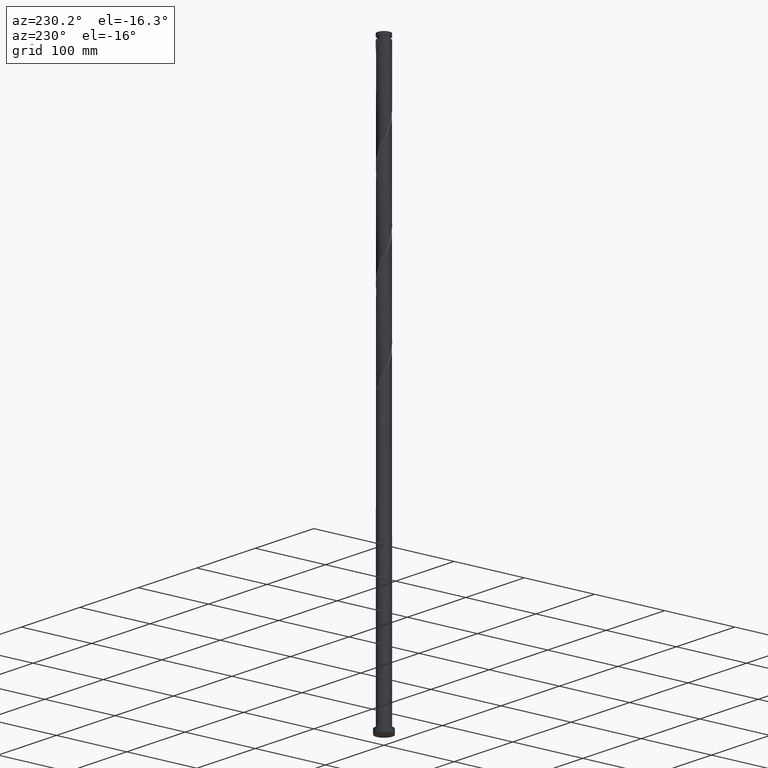
[diagram: clean part render]
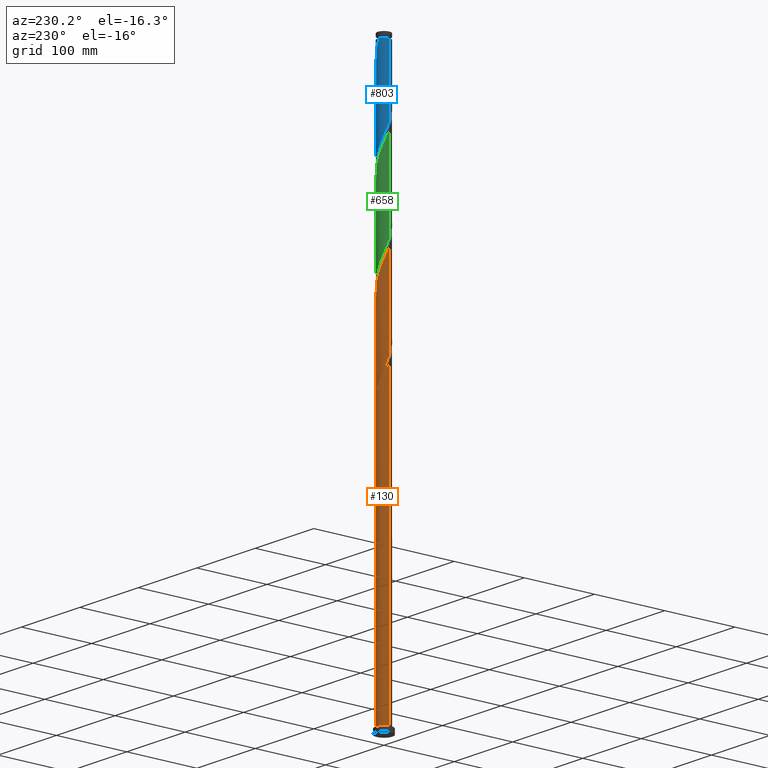
[diagram: same view with three faces highlighted in distinct colors, each labeled with its STEP entity id]
A machine part, auxiliary view with three faces highlighted in distinct colors.
Their STEP definitions:

[orange] entity #130 — the highlighted cylindrical surface (edge-blend (fillet) strip) has radius 9 mm, axis along (-0, -0, -1).
#23 = CARTESIAN_POINT ( 'NONE',  ( -2.521823423607690184, 8.671595382634528448, 527.4047937671250565 ) ) ;
#33 = CARTESIAN_POINT ( 'NONE',  ( 4.671915534983328122, 7.728477540496988318, 509.8609341180023762 ) ) ;
#39 = LINE ( 'NONE', #51, #1264 ) ;
#51 = CARTESIAN_POINT ( 'NONE',  ( -9.000000000000001776, 0.000000000000000000, 800.0000000000000000 ) ) ;
#57 = EDGE_CURVE ( 'NONE', #1976, #60, #691, .T. ) ;
#60 = VERTEX_POINT ( 'NONE', #1732 ) ;
#65 = CARTESIAN_POINT ( 'NONE',  ( -7.357693319166356716, 5.183082964905613821, 416.8784779776514142 ) ) ;
#88 = CARTESIAN_POINT ( 'NONE',  ( -0.4304783433265373938, 9.020579153020694463, 397.5802323636163464 ) ) ;
#130 = ADVANCED_FACE ( 'NONE', ( #1489 ), #633, .T. ) ;
#147 = CARTESIAN_POINT ( 'NONE',  ( -7.316277144428680046, 5.294171191593201264, 408.1065481530898751 ) ) ;
#159 = CARTESIAN_POINT ( 'NONE',  ( -1.790977386791924086, 8.820000000000009166, 392.3170744688795253 ) ) ;
#171 = CARTESIAN_POINT ( 'NONE',  ( -8.796548163028864664, 1.902824325972771291, 550.2118113109847855 ) ) ;
#172 = CARTESIAN_POINT ( 'NONE',  ( -8.087884598390568058, 4.017745958009477647, 411.6153200829147067 ) ) ;
#184 = CARTESIAN_POINT ( 'NONE',  ( 6.404236555330751202, 6.323428986188231349, 504.5977762232654982 ) ) ;
#185 = CARTESIAN_POINT ( 'NONE',  ( -3.218275075876960933, 8.404921506830945077, 395.8258463987040159 ) ) ;
#193 = CARTESIAN_POINT ( 'NONE',  ( -4.557786610309061182, 7.760578664950676497, 532.6679516618619346 ) ) ;
#201 = CARTESIAN_POINT ( 'NONE',  ( 8.433726960243497217, 3.229304788967267914, 495.8258463987040159 ) ) ;
#209 = CARTESIAN_POINT ( 'NONE',  ( 1.169912026461563004, 8.923637478648537069, 518.6328639425636311 ) ) ;
#229 = EDGE_CURVE ( 'NONE', #2228, #60, #39, .T. ) ;
#264 = AXIS2_PLACEMENT_3D ( 'NONE', #390, #1382, #1192 ) ;
#274 = EDGE_CURVE ( 'NONE', #2071, #2228, #1242, .T. ) ;
#287 = CARTESIAN_POINT ( 'NONE',  ( 0.000000000000000000, 0.000000000000000000, 7.000000000000000000 ) ) ;
#336 = ORIENTED_EDGE ( 'NONE', *, *, #1850, .T. ) ;
#345 = CARTESIAN_POINT ( 'NONE',  ( -7.702080871409625829, 4.655958574801339900, 409.8609341180023762 ) ) ;
#358 = CARTESIAN_POINT ( 'NONE',  ( -6.345100722077875233, 6.426185235944550378, 404.5977762232655550 ) ) ;
#370 = CARTESIAN_POINT ( 'NONE',  ( 8.850228015680128735, 1.797115447169553626, 492.3170744688795821 ) ) ;
#380 = CARTESIAN_POINT ( 'NONE',  ( -6.345100722077875233, 6.426185235944550378, 537.9311095565988126 ) ) ;
#388 = CARTESIAN_POINT ( 'NONE',  ( -3.914726728146229462, 8.138247631027358153, 530.9135656969496040 ) ) ;
#390 = CARTESIAN_POINT ( 'NONE',  ( 0.000000000000000000, 0.000000000000000000, 800.0000000000000000 ) ) ;
#408 = CARTESIAN_POINT ( 'NONE',  ( 7.357693319166364709, 5.183082964905619150, 501.0890042934409507 ) ) ;
#443 = CARTESIAN_POINT ( 'NONE',  ( 9.000000000000001776, 1.102182119232617911E-15, 7.000000000000000000 ) ) ;
#476 = AXIS2_PLACEMENT_3D ( 'NONE', #1306, #939, #1629 ) ;
#519 = CARTESIAN_POINT ( 'NONE',  ( -4.557786610309061182, 7.760578664950676497, 399.3346183285286202 ) ) ;
#523 = CARTESIAN_POINT ( 'NONE',  ( 9.000000000000010658, -2.597595984921478145E-15, 488.0651422680906535 ) ) ;
#541 = CARTESIAN_POINT ( 'NONE',  ( -5.200846492471892901, 7.382909698873992177, 401.0890042934408370 ) ) ;
#563 = CARTESIAN_POINT ( 'NONE',  ( -1.060131349976158432, 8.968404617365488107, 523.8960218373003954 ) ) ;
#586 = CARTESIAN_POINT ( 'NONE',  ( 5.276088912864434377, 7.291288348676742359, 508.1065481530901025 ) ) ;
#615 = CARTESIAN_POINT ( 'NONE',  ( -5.276088912864421054, 7.291288348676738806, 409.8609341180022625 ) ) ;
#626 = CARTESIAN_POINT ( 'NONE',  ( -6.404236555330742320, 6.323428986188227796, 413.3697060478268668 ) ) ;
#633 = CYLINDRICAL_SURFACE ( 'NONE', #264, 9.000000000000001776 ) ;
#639 = CARTESIAN_POINT ( 'NONE',  ( 0.3148265033248119904, 8.994491885193086844, 395.8258463987041864 ) ) ;
#651 = CARTESIAN_POINT ( 'NONE',  ( -3.336131102201616905, 8.392043203470045398, 404.5977762232654413 ) ) ;
#684 = AXIS2_PLACEMENT_3D ( 'NONE', #287, #1384, #1967 ) ;
#691 = CIRCLE ( 'NONE', #684, 9.000000000000001776 ) ;
#731 = CARTESIAN_POINT ( 'NONE',  ( 5.880262290745535303, 6.854099156856497288, 506.3521621881778287 ) ) ;
#732 = CARTESIAN_POINT ( 'NONE',  ( -9.000000000000010658, 7.464356278509994737E-16, 421.3984756014240816 ) ) ;
#740 = CARTESIAN_POINT ( 'NONE',  ( -0.3148265033248051625, 8.994491885193095726, 522.1416358723881785 ) ) ;
#755 = CARTESIAN_POINT ( 'NONE',  ( 6.928210819915964436, 5.792758815519961857, 502.8433902583532245 ) ) ;
#770 = DIRECTION ( 'NONE',  ( -0.000000000000000000, -0.000000000000000000, -1.000000000000000000 ) ) ;
#789 = ORIENTED_EDGE ( 'NONE', *, *, #878, .F. ) ;
#795 = CARTESIAN_POINT ( 'NONE',  ( -1.909345709596579121, 8.826695804276356583, 401.0890042934410076 ) ) ;
#864 = CARTESIAN_POINT ( 'NONE',  ( -2.521823423607690184, 8.671595382634528448, 394.0714604337917990 ) ) ;
#878 = EDGE_CURVE ( 'NONE', #1628, #1947, #2201, .T. ) ;
#899 = CARTESIAN_POINT ( 'NONE',  ( -8.989769301839674043, 0.4290080415344310616, 553.7205832408093329 ) ) ;
#901 = CARTESIAN_POINT ( 'NONE',  ( -8.638875644049971214, 2.631727088173295037, 415.1240920127391973 ) ) ;
#912 = CARTESIAN_POINT ( 'NONE',  ( -7.316277144428680046, 5.294171191593201264, 541.4398814864233600 ) ) ;
#920 = CARTESIAN_POINT ( 'NONE',  ( -5.772973607274883179, 6.904547467409275718, 536.1767235916867094 ) ) ;
#927 = CARTESIAN_POINT ( 'NONE',  ( 3.336131102201623122, 8.392043203470052504, 513.3697060478268668 ) ) ;
#939 = DIRECTION ( 'NONE',  ( -6.847750913376832828E-30, -1.541976423090494529E-14, -1.000000000000000000 ) ) ;
#985 = CARTESIAN_POINT ( 'NONE',  ( -8.850228015680121629, 1.797115447169555180, 425.6504078022127260 ) ) ;
#1091 = CARTESIAN_POINT ( 'NONE',  ( 1.909345709596587337, 8.826695804276367241, 516.8784779776513005 ) ) ;
#1101 = VERTEX_POINT ( 'NONE', #523 ) ;
#1102 = CARTESIAN_POINT ( 'NONE',  ( 1.790977386791927639, 8.820000000000002061, 392.3170744688795253 ) ) ;
#1109 = CARTESIAN_POINT ( 'NONE',  ( -9.000000000000010658, 7.464356278509995723E-16, 554.7318089347573959 ) ) ;
#1132 = CARTESIAN_POINT ( 'NONE',  ( -9.000000000000014211, 0.2146260082064675168, 554.2254859163173251 ) ) ;
#1137 = CARTESIAN_POINT ( 'NONE',  ( -1.790977386791924086, 8.820000000000009166, 392.3170744688795253 ) ) ;
#1163 = CARTESIAN_POINT ( 'NONE',  ( -4.671915534983317464, 7.728477540496980325, 408.1065481530899319 ) ) ;
#1164 = CIRCLE ( 'NONE', #476, 9.000000000000001776 ) ;
#1192 = DIRECTION ( 'NONE',  ( -1.000000000000000000, 0.000000000000000000, 0.000000000000000000 ) ) ;
#1200 = CARTESIAN_POINT ( 'NONE',  ( -8.433726960243483006, 3.229304788967272355, 422.1416358723882922 ) ) ;
#1208 = CARTESIAN_POINT ( 'NONE',  ( -8.641977487961801430, 2.513210118068413212, 423.8960218373005659 ) ) ;
#1242 =( BOUNDED_CURVE ( )  B_SPLINE_CURVE ( 2, ( #159, #864, #185, #2171, #519, #541, #1421, #358, #2158, #147, #345, #172, #2147, #901, #1630, #1820, #1641, #1952, #732 ),
 .UNSPECIFIED., .F., .T. ) 
 B_SPLINE_CURVE_WITH_KNOTS ( ( 3, 2, 2, 2, 2, 2, 2, 2, 2, 3 ),
 ( 0.000000000000000000, 0.006578947368421018439, 0.01315789473684214617, 0.01973684210526316374, 0.02631578947368417784, 0.03289473684210530990, 0.03947368421052632748, 0.04605263157894734505, 0.05263157894736847364, 0.05452958095159557428 ),
 .UNSPECIFIED. ) 
 CURVE ( )  GEOMETRIC_REPRESENTATION_ITEM ( )  RATIONAL_B_SPLINE_CURVE ( ( 0.9090909090909511381, 0.9059859027333782011, 0.9090909090909511381, 0.9059859027333782011, 0.9090909090909511381, 0.9059859027333782011, 0.9090909090909511381, 0.9059859027333782011, 0.9090909090909511381, 0.9059859027333782011, 0.9090909090909511381, 0.9059859027333782011, 0.9090909090909511381, 0.9059859027333782011, 0.9090909090909511381, 0.9059859027333782011, 0.9090909090909511381, 0.9081951262308998185, 0.9078162034606223063 ) ) 
 REPRESENTATION_ITEM ( '' )  );
#1264 = VECTOR ( 'NONE', #770, 1000.000000000000000 ) ;
#1275 = CARTESIAN_POINT ( 'NONE',  ( -9.000000000000001776, 0.5300877757809067115, 428.6518128888163801 ) ) ;
#1277 = LINE ( 'NONE', #2227, #1588 ) ;
#1297 = CARTESIAN_POINT ( 'NONE',  ( 8.937772968675862018, 1.056510463936466859, 490.5626885039672516 ) ) ;
#1306 = CARTESIAN_POINT ( 'NONE',  ( 0.000000000000000000, 0.000000000000000000, 392.3170744688796390 ) ) ;
#1364 = CARTESIAN_POINT ( 'NONE',  ( -4.004023318592468961, 8.060260371983511973, 406.3521621881777719 ) ) ;
#1377 = CARTESIAN_POINT ( 'NONE',  ( 1.790977386791927639, 8.820000000000002061, 392.3170744688795253 ) ) ;
#1382 = DIRECTION ( 'NONE',  ( -0.000000000000000000, -0.000000000000000000, -1.000000000000000000 ) ) ;
#1384 = DIRECTION ( 'NONE',  ( 0.000000000000000000, 0.000000000000000000, 1.000000000000000000 ) ) ;
#1421 = CARTESIAN_POINT ( 'NONE',  ( -5.772973607274883179, 6.904547467409275718, 402.8433902583532245 ) ) ;
#1453 = CARTESIAN_POINT ( 'NONE',  ( -9.000000000000005329, 1.283869279903725074E-15, 429.9023400030017115 ) ) ;
#1467 = CARTESIAN_POINT ( 'NONE',  ( -8.363380121220270524, 3.324736523091387230, 546.7030393811602380 ) ) ;
#1475 = CARTESIAN_POINT ( 'NONE',  ( -6.830688933253277639, 5.860178213768877598, 539.6854955215111431 ) ) ;
#1488 = CARTESIAN_POINT ( 'NONE',  ( -8.087884598390568058, 4.017745958009477647, 544.9486534162480211 ) ) ;
#1489 = FACE_OUTER_BOUND ( 'NONE', #2218, .T. ) ;
#1509 = ORIENTED_EDGE ( 'NONE', *, *, #274, .F. ) ;
#1527 = CARTESIAN_POINT ( 'NONE',  ( -6.928210819915955554, 5.792758815519961857, 415.1240920127393110 ) ) ;
#1537 = DIRECTION ( 'NONE',  ( -0.000000000000000000, -0.000000000000000000, -1.000000000000000000 ) ) ;
#1538 = CARTESIAN_POINT ( 'NONE',  ( 1.060131349976162651, 8.968404617365475673, 394.0714604337917422 ) ) ;
#1573 = CARTESIAN_POINT ( 'NONE',  ( -9.000000000000001776, 0.000000000000000000, 800.0000000000000000 ) ) ;
#1574 = CARTESIAN_POINT ( 'NONE',  ( -5.880262290745529974, 6.854099156856491959, 411.6153200829146499 ) ) ;
#1588 = VECTOR ( 'NONE', #2026, 1000.000000000000000 ) ;
#1628 = VERTEX_POINT ( 'NONE', #1786 ) ;
#1629 = DIRECTION ( 'NONE',  ( 0.000000000000000000, 1.000000000000000000, -1.233581138472395876E-14 ) ) ;
#1630 = CARTESIAN_POINT ( 'NONE',  ( -8.796548163028864664, 1.902824325972771291, 416.8784779776514142 ) ) ;
#1640 = CARTESIAN_POINT ( 'NONE',  ( -7.702080871409625829, 4.655958574801339900, 543.1942674513355769 ) ) ;
#1641 = CARTESIAN_POINT ( 'NONE',  ( -8.989769301839674043, 0.4290080415344310616, 420.3872499074760754 ) ) ;
#1651 = CARTESIAN_POINT ( 'NONE',  ( 9.000000000000010658, 0.5300877757809099311, 489.3156693822759848 ) ) ;
#1660 = CARTESIAN_POINT ( 'NONE',  ( 4.004023318592474290, 8.060260371983519079, 511.6153200829146499 ) ) ;
#1670 = CARTESIAN_POINT ( 'NONE',  ( -8.638875644049971214, 2.631727088173295037, 548.4574253460726823 ) ) ;
#1719 = ORIENTED_EDGE ( 'NONE', *, *, #2279, .F. ) ;
#1722 =( BOUNDED_CURVE ( )  B_SPLINE_CURVE ( 2, ( #1837, #1651, #1297, #370, #1847, #201, #2002, #1830, #408, #755, #184, #731, #586, #33, #1660, #927, #2206, #1091, #209, #2016, #740, #563, #2361, #23, #2039, #388, #193, #1819, #920, #380, #1475, #912, #1640, #1488, #1467, #1670, #171, #2194, #899, #1132, #1109 ),
 .UNSPECIFIED., .F., .T. ) 
 B_SPLINE_CURVE_WITH_KNOTS ( ( 3, 2, 2, 2, 2, 2, 2, 2, 2, 2, 2, 2, 2, 2, 2, 2, 2, 2, 2, 2, 3 ),
 ( 0.1795295809515956298, 0.1842105263157894912, 0.1907894736842105088, 0.1973684210526315264, 0.2039473684210526550, 0.2105263157894736725, 0.2171052631578946901, 0.2236842105263158187, 0.2302631578947368363, 0.2368421052631578538, 0.2434210526315789824, 0.2500000000000000000, 0.2565789473684210176, 0.2631578947368421462, 0.2697368421052631637, 0.2763157894736841813, 0.2828947368421053099, 0.2894736842105263275, 0.2960526315789473450, 0.3026315789473684736, 0.3045295809515959351 ),
 .UNSPECIFIED. ) 
 CURVE ( )  GEOMETRIC_REPRESENTATION_ITEM ( )  RATIONAL_B_SPLINE_CURVE ( ( 0.9078162034606223063, 0.9068816855934295207, 0.9090909090909511381, 0.9059859027333782011, 0.9090909090909511381, 0.9059859027333782011, 0.9090909090909511381, 0.9059859027333782011, 0.9090909090909511381, 0.9059859027333782011, 0.9090909090909511381, 0.9059859027333782011, 0.9090909090909511381, 0.9059859027333782011, 0.9090909090909511381, 0.9059859027333782011, 0.9090909090909511381, 0.9059859027333782011, 0.9090909090909511381, 0.9059859027333782011, 0.9090909090909511381, 0.9059859027333782011, 0.9090909090909511381, 0.9059859027333782011, 0.9090909090909511381, 0.9059859027333782011, 0.9090909090909511381, 0.9059859027333782011, 0.9090909090909511381, 0.9059859027333782011, 0.9090909090909511381, 0.9059859027333782011, 0.9090909090909511381, 0.9059859027333782011, 0.9090909090909511381, 0.9059859027333782011, 0.9090909090909511381, 0.9059859027333782011, 0.9090909090909511381, 0.9081951262308995965, 0.9078162034606220843 ) ) 
 REPRESENTATION_ITEM ( '' )  );
#1732 = CARTESIAN_POINT ( 'NONE',  ( -9.000000000000001776, 0.000000000000000000, 7.000000000000000000 ) ) ;
#1739 = CARTESIAN_POINT ( 'NONE',  ( -2.622738405899098346, 8.609369503873201879, 402.8433902583532813 ) ) ;
#1779 = VECTOR ( 'NONE', #1537, 1000.000000000000000 ) ;
#1786 = CARTESIAN_POINT ( 'NONE',  ( -9.000000000000005329, 1.283869279903725074E-15, 429.9023400030017115 ) ) ;
#1803 = VERTEX_POINT ( 'NONE', #2183 ) ;
#1819 = CARTESIAN_POINT ( 'NONE',  ( -5.200846492471892901, 7.382909698873992177, 534.4223376267742651 ) ) ;
#1820 = CARTESIAN_POINT ( 'NONE',  ( -8.954220682007752785, 1.173921563772246657, 418.6328639425637448 ) ) ;
#1830 = CARTESIAN_POINT ( 'NONE',  ( 7.787175818416772977, 4.573407114291268449, 499.3346183285286770 ) ) ;
#1837 = CARTESIAN_POINT ( 'NONE',  ( 9.000000000000010658, -2.597595984921478145E-15, 488.0651422680906535 ) ) ;
#1847 = CARTESIAN_POINT ( 'NONE',  ( 8.641977487961812088, 2.513210118068414545, 494.0714604337918558 ) ) ;
#1850 = EDGE_CURVE ( 'NONE', #1101, #1976, #1277, .T. ) ;
#1871 = ORIENTED_EDGE ( 'NONE', *, *, #229, .F. ) ;
#1873 = ORIENTED_EDGE ( 'NONE', *, *, #1902, .F. ) ;
#1895 = CARTESIAN_POINT ( 'NONE',  ( -1.169912026461558341, 8.923637478648526411, 399.3346183285286770 ) ) ;
#1899 = CARTESIAN_POINT ( 'NONE',  ( -8.937772968675853136, 1.056510463936470856, 427.4047937671251702 ) ) ;
#1902 = EDGE_CURVE ( 'NONE', #1101, #1803, #1722, .T. ) ;
#1904 = ORIENTED_EDGE ( 'NONE', *, *, #1944, .T. ) ;
#1916 = CARTESIAN_POINT ( 'NONE',  ( -7.787175818416761430, 4.573407114291266673, 418.6328639425638016 ) ) ;
#1944 = EDGE_CURVE ( 'NONE', #2071, #1947, #1164, .T. ) ;
#1947 = VERTEX_POINT ( 'NONE', #1102 ) ;
#1952 = CARTESIAN_POINT ( 'NONE',  ( -9.000000000000012434, 0.2146260082065082619, 420.8921525829838970 ) ) ;
#1967 = DIRECTION ( 'NONE',  ( 1.000000000000000000, 0.000000000000000000, 0.000000000000000000 ) ) ;
#1976 = VERTEX_POINT ( 'NONE', #443 ) ;
#2002 = CARTESIAN_POINT ( 'NONE',  ( 8.110451389330131988, 3.901355951629267960, 497.5802323636164033 ) ) ;
#2016 = CARTESIAN_POINT ( 'NONE',  ( 0.4304783433265395587, 9.020579153020705121, 520.3872499074758480 ) ) ;
#2026 = DIRECTION ( 'NONE',  ( -0.000000000000000000, -0.000000000000000000, -1.000000000000000000 ) ) ;
#2039 = CARTESIAN_POINT ( 'NONE',  ( -3.218275075876960933, 8.404921506830945077, 529.1591797320373871 ) ) ;
#2071 = VERTEX_POINT ( 'NONE', #1137 ) ;
#2147 = CARTESIAN_POINT ( 'NONE',  ( -8.363380121220270524, 3.324736523091387230, 413.3697060478269236 ) ) ;
#2158 = CARTESIAN_POINT ( 'NONE',  ( -6.830688933253277639, 5.860178213768877598, 406.3521621881778856 ) ) ;
#2171 = CARTESIAN_POINT ( 'NONE',  ( -3.914726728146229462, 8.138247631027358153, 397.5802323636163464 ) ) ;
#2183 = CARTESIAN_POINT ( 'NONE',  ( -9.000000000000010658, 7.464356278509994737E-16, 554.7318089347573959 ) ) ;
#2194 = CARTESIAN_POINT ( 'NONE',  ( -8.954220682007752785, 1.173921563772246657, 551.9661972758970023 ) ) ;
#2201 =( BOUNDED_CURVE ( )  B_SPLINE_CURVE ( 2, ( #1453, #1275, #1899, #985, #1208, #1200, #2277, #1916, #65, #1527, #626, #1574, #615, #1163, #1364, #651, #1739, #795, #1895, #88, #639, #1538, #1377 ),
 .UNSPECIFIED., .F., .T. ) 
 B_SPLINE_CURVE_WITH_KNOTS ( ( 3, 2, 2, 2, 2, 2, 2, 2, 2, 2, 2, 3 ),
 ( 0.9295295809515955465, 0.9342105263157894912, 0.9407894736842105088, 0.9473684210526315264, 0.9539473684210526550, 0.9605263157894736725, 0.9671052631578946901, 0.9736842105263158187, 0.9802631578947368363, 0.9868421052631578538, 0.9934210526315789824, 1.000000000000000000 ),
 .UNSPECIFIED. ) 
 CURVE ( )  GEOMETRIC_REPRESENTATION_ITEM ( )  RATIONAL_B_SPLINE_CURVE ( ( 0.9078162034606180875, 0.9068816855934254129, 0.9090909090909469192, 0.9059859027333740933, 0.9090909090909469192, 0.9059859027333740933, 0.9090909090909469192, 0.9059859027333740933, 0.9090909090909469192, 0.9059859027333740933, 0.9090909090909469192, 0.9059859027333740933, 0.9090909090909469192, 0.9059859027333740933, 0.9090909090909469192, 0.9059859027333740933, 0.9090909090909469192, 0.9059859027333740933, 0.9090909090909469192, 0.9059859027333740933, 0.9090909090909469192, 0.9059859027333740933, 0.9090909090909469192 ) ) 
 REPRESENTATION_ITEM ( '' )  );
#2206 = CARTESIAN_POINT ( 'NONE',  ( 2.622738405899108116, 8.609369503873205431, 515.1240920127389700 ) ) ;
#2218 = EDGE_LOOP ( 'NONE', ( #1873, #336, #2331, #1871, #1509, #1904, #789, #1719 ) ) ;
#2227 = CARTESIAN_POINT ( 'NONE',  ( 9.000000000000001776, 1.102182119232617911E-15, 800.0000000000000000 ) ) ;
#2228 = VERTEX_POINT ( 'NONE', #2313 ) ;
#2277 = CARTESIAN_POINT ( 'NONE',  ( -8.110451389330124883, 3.901355951629268404, 420.3872499074759617 ) ) ;
#2279 = EDGE_CURVE ( 'NONE', #1803, #1628, #2301, .T. ) ;
#2301 = LINE ( 'NONE', #1573, #1779 ) ;
#2313 = CARTESIAN_POINT ( 'NONE',  ( -9.000000000000010658, 7.464356278509994737E-16, 421.3984756014240816 ) ) ;
#2331 = ORIENTED_EDGE ( 'NONE', *, *, #57, .T. ) ;
#2361 = CARTESIAN_POINT ( 'NONE',  ( -1.790977386791924530, 8.820000000000007390, 525.6504078022128397 ) ) ;

[blue] entity #803 — the highlighted cylindrical surface (edge-blend (fillet) strip) has radius 9 mm, axis along (-0, -0, -1).
#4 = CARTESIAN_POINT ( 'NONE',  ( 9.000000000000001776, 1.102182119232617911E-15, 800.0000000000000000 ) ) ;
#72 =( BOUNDED_CURVE ( )  B_SPLINE_CURVE ( 2, ( #1603, #1237, #95, #1407, #1784, #144, #1051, #875, #1024, #329, #2321, #2133, #1554, #2337, #2297, #1182, #1014, #117, #686, #700, #2284, #2112, #1939, #464, #1194, #131, #1419, #1924, #1770, #1950, #477, #2145, #659, #1222, #107, #838, #1569, #1209, #300, #1758, #2308 ),
 .UNSPECIFIED., .F., .T. ) 
 B_SPLINE_CURVE_WITH_KNOTS ( ( 3, 2, 2, 2, 2, 2, 2, 2, 2, 2, 2, 2, 2, 2, 2, 2, 2, 2, 2, 2, 3 ),
 ( 0.4295295809515953245, 0.4342105263157894912, 0.4407894736842105088, 0.4473684210526315819, 0.4539473684210526550, 0.4605263157894736725, 0.4671052631578947456, 0.4736842105263157632, 0.4802631578947368363, 0.4868421052631579093, 0.4934210526315789269, 0.5000000000000000000, 0.5065789473684210176, 0.5131578947368421462, 0.5197368421052631637, 0.5263157894736841813, 0.5328947368421053099, 0.5394736842105263275, 0.5460526315789473450, 0.5526315789473684736, 0.5545295809515956575 ),
 .UNSPECIFIED. ) 
 CURVE ( )  GEOMETRIC_REPRESENTATION_ITEM ( )  RATIONAL_B_SPLINE_CURVE ( ( 0.9078162034606183095, 0.9068816855934253018, 0.9090909090909469192, 0.9059859027333740933, 0.9090909090909469192, 0.9059859027333740933, 0.9090909090909469192, 0.9059859027333740933, 0.9090909090909469192, 0.9059859027333740933, 0.9090909090909469192, 0.9059859027333740933, 0.9090909090909469192, 0.9059859027333740933, 0.9090909090909469192, 0.9059859027333740933, 0.9090909090909469192, 0.9059859027333740933, 0.9090909090909469192, 0.9059859027333740933, 0.9090909090909469192, 0.9059859027333740933, 0.9090909090909469192, 0.9059859027333740933, 0.9090909090909469192, 0.9059859027333740933, 0.9090909090909469192, 0.9059859027333740933, 0.9090909090909469192, 0.9059859027333740933, 0.9090909090909469192, 0.9059859027333740933, 0.9090909090909469192, 0.9059859027333740933, 0.9090909090909469192, 0.9059859027333740933, 0.9090909090909469192, 0.9059859027333740933, 0.9090909090909469192, 0.9081951262308955997, 0.9078162034606180875 ) ) 
 REPRESENTATION_ITEM ( '' )  );
#85 = EDGE_CURVE ( 'NONE', #1708, #262, #72, .T. ) ;
#95 = CARTESIAN_POINT ( 'NONE',  ( -8.937772968675853136, 1.056510463936470856, 694.0714604337917990 ) ) ;
#107 = CARTESIAN_POINT ( 'NONE',  ( 8.363380121220265195, 3.324736523091380125, 637.9311095565986989 ) ) ;
#117 = CARTESIAN_POINT ( 'NONE',  ( -1.909345709596579121, 8.826695804276356583, 667.7556709601075227 ) ) ;
#118 = CARTESIAN_POINT ( 'NONE',  ( 9.000000000000008882, 0.5300877757809092650, 755.9823360489426705 ) ) ;
#131 = CARTESIAN_POINT ( 'NONE',  ( 3.914726728146228574, 8.138247631027351048, 653.7205832408094466 ) ) ;
#132 = CARTESIAN_POINT ( 'NONE',  ( 6.404236555330751202, 6.323428986188231349, 771.2644428899320701 ) ) ;
#144 = CARTESIAN_POINT ( 'NONE',  ( -8.433726960243483006, 3.229304788967272355, 688.8083025390550347 ) ) ;
#146 = CARTESIAN_POINT ( 'NONE',  ( 8.850228015680128735, 1.797115447169553626, 758.9837411355459835 ) ) ;
#225 = VERTEX_POINT ( 'NONE', #1678 ) ;
#255 =( BOUNDED_CURVE ( )  B_SPLINE_CURVE ( 2, ( #1239, #118, #1262, #146, #1592, #711, #2309, #876, #1771, #674, #132, #687, #660, #1408, #701, #2134, #1443, #839, #490, #1570, #1808, #1223, #1420 ),
 .UNSPECIFIED., .F., .F. ) 
 B_SPLINE_CURVE_WITH_KNOTS ( ( 3, 2, 2, 2, 2, 2, 2, 2, 2, 2, 2, 3 ),
 ( 0.6795295809515955465, 0.6842105263157894912, 0.6907894736842105088, 0.6973684210526316374, 0.7039473684210526550, 0.7105263157894736725, 0.7171052631578946901, 0.7236842105263158187, 0.7302631578947369473, 0.7368421052631580759, 0.7434210526315790935, 0.7500000000000001110 ),
 .UNSPECIFIED. ) 
 CURVE ( )  GEOMETRIC_REPRESENTATION_ITEM ( )  RATIONAL_B_SPLINE_CURVE ( ( 0.9078162034606223063, 0.9068816855934296317, 0.9090909090909511381, 0.9059859027333782011, 0.9090909090909511381, 0.9059859027333782011, 0.9090909090909511381, 0.9059859027333782011, 0.9090909090909511381, 0.9059859027333782011, 0.9090909090909511381, 0.9059859027333782011, 0.9090909090909511381, 0.9059859027333782011, 0.9090909090909511381, 0.9059859027333782011, 0.9090909090909511381, 0.9059859027333782011, 0.9090909090909511381, 0.9059859027333782011, 0.9090909090909511381, 0.9059859027333782011, 0.9090909090909511381 ) ) 
 REPRESENTATION_ITEM ( '' )  );
#262 = VERTEX_POINT ( 'NONE', #1502 ) ;
#278 = DIRECTION ( 'NONE',  ( -0.000000000000000000, -0.000000000000000000, -1.000000000000000000 ) ) ;
#291 = CYLINDRICAL_SURFACE ( 'NONE', #475, 9.000000000000001776 ) ;
#300 = CARTESIAN_POINT ( 'NONE',  ( 8.989769301839661608, 0.4290080415344256770, 630.9135656969497177 ) ) ;
#329 = CARTESIAN_POINT ( 'NONE',  ( -6.928210819915955554, 5.792758815519961857, 681.7907586794058261 ) ) ;
#420 = VERTEX_POINT ( 'NONE', #668 ) ;
#464 = CARTESIAN_POINT ( 'NONE',  ( 2.521823423607692405, 8.671595382634517790, 657.2293551706339940 ) ) ;
#475 = AXIS2_PLACEMENT_3D ( 'NONE', #482, #1213, #1681 ) ;
#477 = CARTESIAN_POINT ( 'NONE',  ( 6.830688933253274087, 5.860178213768868716, 644.9486534162479074 ) ) ;
#482 = CARTESIAN_POINT ( 'NONE',  ( 0.000000000000000000, 0.000000000000000000, 800.0000000000000000 ) ) ;
#490 = CARTESIAN_POINT ( 'NONE',  ( 1.169912026461563004, 8.923637478648537069, 785.2995306092302599 ) ) ;
#517 = CARTESIAN_POINT ( 'NONE',  ( -9.000000000000003553, 1.021123938900171936E-14, 696.5690066696686245 ) ) ;
#540 = DIRECTION ( 'NONE',  ( -0.000000000000000000, -0.000000000000000000, -1.000000000000000000 ) ) ;
#659 = CARTESIAN_POINT ( 'NONE',  ( 7.702080871409622276, 4.655958574801331018, 641.4398814864233600 ) ) ;
#660 = CARTESIAN_POINT ( 'NONE',  ( 5.276088912864434377, 7.291288348676742359, 774.7732148197567312 ) ) ;
#668 = CARTESIAN_POINT ( 'NONE',  ( -1.790977386791948955, 8.820000000000007390, 792.3170744688795821 ) ) ;
#674 = CARTESIAN_POINT ( 'NONE',  ( 6.928210819915964436, 5.792758815519961857, 769.5100569250198532 ) ) ;
#686 = CARTESIAN_POINT ( 'NONE',  ( -1.169912026461558341, 8.923637478648526411, 666.0012849951951921 ) ) ;
#687 = CARTESIAN_POINT ( 'NONE',  ( 5.880262290745535303, 6.854099156856497288, 773.0188288548446280 ) ) ;
#700 = CARTESIAN_POINT ( 'NONE',  ( -0.4304783433265373938, 9.020579153020694463, 664.2468990302827478 ) ) ;
#701 = CARTESIAN_POINT ( 'NONE',  ( 4.004023318592474290, 8.060260371983519079, 778.2819867495810513 ) ) ;
#711 = CARTESIAN_POINT ( 'NONE',  ( 8.433726960243497217, 3.229304788967267914, 762.4925130653709857 ) ) ;
#803 = ADVANCED_FACE ( 'NONE', ( #1398 ), #291, .T. ) ;
#806 = DIRECTION ( 'NONE',  ( -0.000000000000000000, -0.000000000000000000, -1.000000000000000000 ) ) ;
#835 = ORIENTED_EDGE ( 'NONE', *, *, #1828, .T. ) ;
#838 = CARTESIAN_POINT ( 'NONE',  ( 8.638875644049964109, 2.631727088173284823, 636.1767235916864820 ) ) ;
#839 = CARTESIAN_POINT ( 'NONE',  ( 1.909345709596587337, 8.826695804276367241, 783.5451446443179293 ) ) ;
#853 = DIRECTION ( 'NONE',  ( -1.000000000000000000, 0.000000000000000000, 0.000000000000000000 ) ) ;
#875 = CARTESIAN_POINT ( 'NONE',  ( -7.787175818416761430, 4.573407114291266673, 685.2995306092304872 ) ) ;
#876 = CARTESIAN_POINT ( 'NONE',  ( 7.787175818416772977, 4.573407114291268449, 766.0012849951954195 ) ) ;
#930 = EDGE_CURVE ( 'NONE', #225, #1708, #2253, .T. ) ;
#1014 = CARTESIAN_POINT ( 'NONE',  ( -2.622738405899098346, 8.609369503873201879, 669.5100569250198532 ) ) ;
#1024 = CARTESIAN_POINT ( 'NONE',  ( -7.357693319166356716, 5.183082964905613821, 683.5451446443182704 ) ) ;
#1051 = CARTESIAN_POINT ( 'NONE',  ( -8.110451389330124883, 3.901355951629268404, 687.0539165741425904 ) ) ;
#1089 = VECTOR ( 'NONE', #278, 1000.000000000000000 ) ;
#1182 = CARTESIAN_POINT ( 'NONE',  ( -3.336131102201616905, 8.392043203470045398, 671.2644428899321838 ) ) ;
#1194 = CARTESIAN_POINT ( 'NONE',  ( 3.218275075876964042, 8.404921506830932643, 655.4749692057216635 ) ) ;
#1209 = CARTESIAN_POINT ( 'NONE',  ( 8.954220682007747456, 1.173921563772242216, 632.6679516618619346 ) ) ;
#1213 = DIRECTION ( 'NONE',  ( -0.000000000000000000, -0.000000000000000000, -1.000000000000000000 ) ) ;
#1222 = CARTESIAN_POINT ( 'NONE',  ( 8.087884598390562729, 4.017745958009472318, 639.6854955215111431 ) ) ;
#1223 = CARTESIAN_POINT ( 'NONE',  ( -1.060131349976170867, 8.968404617365488107, 790.5626885039667968 ) ) ;
#1237 = CARTESIAN_POINT ( 'NONE',  ( -9.000000000000007105, 0.5300877757808861723, 695.3184795554833499 ) ) ;
#1239 = CARTESIAN_POINT ( 'NONE',  ( 9.000000000000010658, 6.329774124176475316E-15, 754.7318089347575096 ) ) ;
#1247 = ORIENTED_EDGE ( 'NONE', *, *, #930, .F. ) ;
#1262 = CARTESIAN_POINT ( 'NONE',  ( 8.937772968675862018, 1.056510463936466859, 757.2293551706341077 ) ) ;
#1398 = FACE_OUTER_BOUND ( 'NONE', #1960, .T. ) ;
#1407 = CARTESIAN_POINT ( 'NONE',  ( -8.850228015680121629, 1.797115447169555180, 692.3170744688794684 ) ) ;
#1408 = CARTESIAN_POINT ( 'NONE',  ( 4.671915534983328122, 7.728477540496988318, 776.5276007846689481 ) ) ;
#1419 = CARTESIAN_POINT ( 'NONE',  ( 4.557786610309059405, 7.760578664950666727, 651.9661972758971160 ) ) ;
#1420 = CARTESIAN_POINT ( 'NONE',  ( -1.790977386791948955, 8.820000000000007390, 792.3170744688795821 ) ) ;
#1443 = CARTESIAN_POINT ( 'NONE',  ( 2.622738405899108116, 8.609369503873205431, 781.7907586794059398 ) ) ;
#1454 = LINE ( 'NONE', #4, #1814 ) ;
#1496 = VERTEX_POINT ( 'NONE', #1721 ) ;
#1502 = CARTESIAN_POINT ( 'NONE',  ( 9.000000000000000000, -4.807045443360459022E-15, 629.9023400030018820 ) ) ;
#1554 = CARTESIAN_POINT ( 'NONE',  ( -5.276088912864421054, 7.291288348676738806, 676.5276007846691755 ) ) ;
#1569 = CARTESIAN_POINT ( 'NONE',  ( 8.796548163028852230, 1.902824325972768404, 634.4223376267742651 ) ) ;
#1570 = CARTESIAN_POINT ( 'NONE',  ( 0.4304783433265395587, 9.020579153020705121, 787.0539165741428178 ) ) ;
#1592 = CARTESIAN_POINT ( 'NONE',  ( 8.641977487961812088, 2.513210118068414545, 760.7381271004587688 ) ) ;
#1603 = CARTESIAN_POINT ( 'NONE',  ( -9.000000000000003553, 1.021123938900171936E-14, 696.5690066696686245 ) ) ;
#1613 = ORIENTED_EDGE ( 'NONE', *, *, #2357, .T. ) ;
#1650 = EDGE_CURVE ( 'NONE', #1496, #420, #255, .T. ) ;
#1678 = CARTESIAN_POINT ( 'NONE',  ( -8.999999999999916511, 0.000000000000000000, 792.3170744688795821 ) ) ;
#1681 = DIRECTION ( 'NONE',  ( -1.000000000000000000, 0.000000000000000000, 0.000000000000000000 ) ) ;
#1708 = VERTEX_POINT ( 'NONE', #517 ) ;
#1721 = CARTESIAN_POINT ( 'NONE',  ( 9.000000000000010658, 6.329774124176475316E-15, 754.7318089347575096 ) ) ;
#1758 = CARTESIAN_POINT ( 'NONE',  ( 9.000000000000000000, 0.2146260082064930796, 630.4086630214418392 ) ) ;
#1766 = ORIENTED_EDGE ( 'NONE', *, *, #85, .F. ) ;
#1770 = CARTESIAN_POINT ( 'NONE',  ( 5.772973607274884067, 6.904547467409262396, 648.4574253460725686 ) ) ;
#1771 = CARTESIAN_POINT ( 'NONE',  ( 7.357693319166364709, 5.183082964905619150, 767.7556709601075227 ) ) ;
#1784 = CARTESIAN_POINT ( 'NONE',  ( -8.641977487961801430, 2.513210118068413212, 690.5626885039671379 ) ) ;
#1808 = CARTESIAN_POINT ( 'NONE',  ( -0.3148265033248051625, 8.994491885193095726, 788.8083025390550347 ) ) ;
#1814 = VECTOR ( 'NONE', #540, 1000.000000000000000 ) ;
#1828 = EDGE_CURVE ( 'NONE', #1496, #262, #1454, .T. ) ;
#1924 = CARTESIAN_POINT ( 'NONE',  ( 5.200846492471892013, 7.382909698873985072, 650.2118113109847855 ) ) ;
#1939 = CARTESIAN_POINT ( 'NONE',  ( 1.790977386791927639, 8.820000000000002061, 658.9837411355462109 ) ) ;
#1950 = CARTESIAN_POINT ( 'NONE',  ( 6.345100722077869904, 6.426185235944545049, 646.7030393811601243 ) ) ;
#1960 = EDGE_LOOP ( 'NONE', ( #2347, #835, #1766, #1247, #1613 ) ) ;
#2013 = CIRCLE ( 'NONE', #2086, 8.999999999999916511 ) ;
#2086 = AXIS2_PLACEMENT_3D ( 'NONE', #2289, #806, #853 ) ;
#2112 = CARTESIAN_POINT ( 'NONE',  ( 1.060131349976162651, 8.968404617365475673, 660.7381271004585415 ) ) ;
#2117 = CARTESIAN_POINT ( 'NONE',  ( -9.000000000000001776, 0.000000000000000000, 800.0000000000000000 ) ) ;
#2133 = CARTESIAN_POINT ( 'NONE',  ( -5.880262290745529974, 6.854099156856491959, 678.2819867495812787 ) ) ;
#2134 = CARTESIAN_POINT ( 'NONE',  ( 3.336131102201623122, 8.392043203470052504, 780.0363727144937229 ) ) ;
#2145 = CARTESIAN_POINT ( 'NONE',  ( 7.316277144428676493, 5.294171191593190606, 643.1942674513356906 ) ) ;
#2253 = LINE ( 'NONE', #2117, #1089 ) ;
#2284 = CARTESIAN_POINT ( 'NONE',  ( 0.3148265033248119904, 8.994491885193086844, 662.4925130653706447 ) ) ;
#2289 = CARTESIAN_POINT ( 'NONE',  ( 0.000000000000000000, 0.000000000000000000, 792.3170744688795821 ) ) ;
#2297 = CARTESIAN_POINT ( 'NONE',  ( -4.004023318592468961, 8.060260371983511973, 673.0188288548445144 ) ) ;
#2308 = CARTESIAN_POINT ( 'NONE',  ( 9.000000000000000000, -4.807045443360459022E-15, 629.9023400030018820 ) ) ;
#2309 = CARTESIAN_POINT ( 'NONE',  ( 8.110451389330131988, 3.901355951629267960, 764.2468990302830889 ) ) ;
#2321 = CARTESIAN_POINT ( 'NONE',  ( -6.404236555330742320, 6.323428986188227796, 680.0363727144938366 ) ) ;
#2337 = CARTESIAN_POINT ( 'NONE',  ( -4.671915534983317464, 7.728477540496980325, 674.7732148197565039 ) ) ;
#2347 = ORIENTED_EDGE ( 'NONE', *, *, #1650, .F. ) ;
#2357 = EDGE_CURVE ( 'NONE', #225, #420, #2013, .T. ) ;

[green] entity #658 — the highlighted cylindrical surface (edge-blend (fillet) strip) has radius 9 mm, axis along (-0, -0, -1).
#3 = VERTEX_POINT ( 'NONE', #1522 ) ;
#76 = CARTESIAN_POINT ( 'NONE',  ( -6.830688933253277639, 5.860178213768877598, 673.0188288548444007 ) ) ;
#100 = CARTESIAN_POINT ( 'NONE',  ( 8.641977487961812088, 2.513210118068414545, 627.4047937671251702 ) ) ;
#111 = CARTESIAN_POINT ( 'NONE',  ( 1.909345709596587337, 8.826695804276367241, 650.2118113109845581 ) ) ;
#151 = CARTESIAN_POINT ( 'NONE',  ( -7.787175818416761430, 4.573407114291266673, 551.9661972758970023 ) ) ;
#162 = CARTESIAN_POINT ( 'NONE',  ( -9.000000000000012434, 0.2146260082065276076, 687.5588192496506963 ) ) ;
#241 = CARTESIAN_POINT ( 'NONE',  ( -5.772973607274883179, 6.904547467409275718, 669.5100569250198532 ) ) ;
#254 = CARTESIAN_POINT ( 'NONE',  ( 8.433726960243497217, 3.229304788967267914, 629.1591797320375008 ) ) ;
#305 = CARTESIAN_POINT ( 'NONE',  ( -8.087884598390568058, 4.017745958009477647, 678.2819867495811650 ) ) ;
#318 = CARTESIAN_POINT ( 'NONE',  ( -1.169912026461558341, 8.923637478648526411, 532.6679516618619346 ) ) ;
#333 = CARTESIAN_POINT ( 'NONE',  ( -8.363380121220270524, 3.324736523091387230, 680.0363727144937229 ) ) ;
#349 = CARTESIAN_POINT ( 'NONE',  ( -8.937772968675853136, 1.056510463936470856, 560.7381271004585415 ) ) ;
#352 = EDGE_LOOP ( 'NONE', ( #1862, #1860, #777, #1874 ) ) ;
#435 = CARTESIAN_POINT ( 'NONE',  ( -6.345100722077875233, 6.426185235944550378, 671.2644428899321838 ) ) ;
#448 = CARTESIAN_POINT ( 'NONE',  ( -7.316277144428680046, 5.294171191593201264, 674.7732148197566175 ) ) ;
#459 = CARTESIAN_POINT ( 'NONE',  ( 5.276088912864434377, 7.291288348676742359, 641.4398814864233600 ) ) ;
#469 = CARTESIAN_POINT ( 'NONE',  ( 9.000000000000010658, -2.597595984921478145E-15, 621.3984756014241384 ) ) ;
#495 = CARTESIAN_POINT ( 'NONE',  ( -8.954220682007752785, 1.173921563772246657, 685.2995306092304872 ) ) ;
#507 = CARTESIAN_POINT ( 'NONE',  ( -9.000000000000005329, 1.283869279903725074E-15, 563.2356733363351395 ) ) ;
#533 = CARTESIAN_POINT ( 'NONE',  ( -6.928210819915955554, 5.792758815519961857, 548.4574253460725686 ) ) ;
#555 = AXIS2_PLACEMENT_3D ( 'NONE', #1258, #1085, #908 ) ;
#578 =( BOUNDED_CURVE ( )  B_SPLINE_CURVE ( 2, ( #507, #1030, #349, #1447, #880, #1244, #854, #151, #1985, #533, #2364, #2175, #1585, #678, #2139, #1609, #1957, #2341, #318, #705, #1042, #2162, #692, #1267, #1800, #1775, #904, #723, #1996, #1069, #891, #868, #1633, #1621, #1459, #1215, #1596, #1943, #2328, #1426, #2150 ),
 .UNSPECIFIED., .F., .T. ) 
 B_SPLINE_CURVE_WITH_KNOTS ( ( 3, 2, 2, 2, 2, 2, 2, 2, 2, 2, 2, 2, 2, 2, 2, 2, 2, 2, 2, 2, 3 ),
 ( 0.6795295809515955465, 0.6842105263157894912, 0.6907894736842105088, 0.6973684210526315264, 0.7039473684210526550, 0.7105263157894736725, 0.7171052631578946901, 0.7236842105263158187, 0.7302631578947368363, 0.7368421052631578538, 0.7434210526315789824, 0.7500000000000000000, 0.7565789473684210176, 0.7631578947368421462, 0.7697368421052631637, 0.7763157894736841813, 0.7828947368421053099, 0.7894736842105263275, 0.7960526315789473450, 0.8026315789473684736, 0.8045295809515956575 ),
 .UNSPECIFIED. ) 
 CURVE ( )  GEOMETRIC_REPRESENTATION_ITEM ( )  RATIONAL_B_SPLINE_CURVE ( ( 0.9078162034606180875, 0.9068816855934254129, 0.9090909090909469192, 0.9059859027333740933, 0.9090909090909469192, 0.9059859027333740933, 0.9090909090909469192, 0.9059859027333740933, 0.9090909090909469192, 0.9059859027333740933, 0.9090909090909469192, 0.9059859027333740933, 0.9090909090909469192, 0.9059859027333740933, 0.9090909090909469192, 0.9059859027333740933, 0.9090909090909469192, 0.9059859027333740933, 0.9090909090909469192, 0.9059859027333740933, 0.9090909090909469192, 0.9059859027333740933, 0.9090909090909469192, 0.9059859027333740933, 0.9090909090909469192, 0.9059859027333740933, 0.9090909090909469192, 0.9059859027333740933, 0.9090909090909469192, 0.9059859027333740933, 0.9090909090909469192, 0.9059859027333740933, 0.9090909090909469192, 0.9059859027333740933, 0.9090909090909469192, 0.9059859027333740933, 0.9090909090909469192, 0.9059859027333740933, 0.9090909090909469192, 0.9081951262308955997, 0.9078162034606180875 ) ) 
 REPRESENTATION_ITEM ( '' )  );
#658 = ADVANCED_FACE ( 'NONE', ( #1074 ), #2179, .T. ) ;
#665 = CARTESIAN_POINT ( 'NONE',  ( 0.4304783433265395587, 9.020579153020705121, 653.7205832408095603 ) ) ;
#678 = CARTESIAN_POINT ( 'NONE',  ( -4.671915534983317464, 7.728477540496980325, 541.4398814864233600 ) ) ;
#692 = CARTESIAN_POINT ( 'NONE',  ( 1.790977386791927639, 8.820000000000002061, 525.6504078022127260 ) ) ;
#705 = CARTESIAN_POINT ( 'NONE',  ( -0.4304783433265373938, 9.020579153020694463, 530.9135656969497177 ) ) ;
#723 = CARTESIAN_POINT ( 'NONE',  ( 5.200846492471892013, 7.382909698873985072, 516.8784779776513005 ) ) ;
#777 = ORIENTED_EDGE ( 'NONE', *, *, #1108, .F. ) ;
#817 = CARTESIAN_POINT ( 'NONE',  ( 7.787175818416772977, 4.573407114291268449, 632.6679516618621619 ) ) ;
#831 = CARTESIAN_POINT ( 'NONE',  ( -3.218275075876960933, 8.404921506830945077, 662.4925130653705310 ) ) ;
#843 = CARTESIAN_POINT ( 'NONE',  ( 8.110451389330131988, 3.901355951629267960, 630.9135656969497177 ) ) ;
#854 = CARTESIAN_POINT ( 'NONE',  ( -8.110451389330124883, 3.901355951629268404, 553.7205832408095603 ) ) ;
#868 = CARTESIAN_POINT ( 'NONE',  ( 7.316277144428676493, 5.294171191593190606, 509.8609341180023762 ) ) ;
#880 = CARTESIAN_POINT ( 'NONE',  ( -8.641977487961801430, 2.513210118068413212, 557.2293551706338803 ) ) ;
#891 = CARTESIAN_POINT ( 'NONE',  ( 6.830688933253274087, 5.860178213768868716, 511.6153200829145362 ) ) ;
#894 = VERTEX_POINT ( 'NONE', #2290 ) ;
#904 = CARTESIAN_POINT ( 'NONE',  ( 4.557786610309059405, 7.760578664950666727, 518.6328639425637448 ) ) ;
#908 = DIRECTION ( 'NONE',  ( -1.000000000000000000, 0.000000000000000000, 0.000000000000000000 ) ) ;
#967 = CARTESIAN_POINT ( 'NONE',  ( -7.702080871409625829, 4.655958574801339900, 676.5276007846689481 ) ) ;
#975 = EDGE_CURVE ( 'NONE', #3, #894, #1977, .T. ) ;
#982 = CARTESIAN_POINT ( 'NONE',  ( 9.000000000000012434, 0.5300877757808941659, 622.6490027156095266 ) ) ;
#994 = CARTESIAN_POINT ( 'NONE',  ( 4.004023318592474290, 8.060260371983519079, 644.9486534162480211 ) ) ;
#1007 = CARTESIAN_POINT ( 'NONE',  ( -1.060131349976158432, 8.968404617365488107, 657.2293551706339940 ) ) ;
#1018 = CARTESIAN_POINT ( 'NONE',  ( 7.357693319166364709, 5.183082964905619150, 634.4223376267743788 ) ) ;
#1030 = CARTESIAN_POINT ( 'NONE',  ( -9.000000000000001776, 0.5300877757809067115, 561.9851462221497513 ) ) ;
#1042 = CARTESIAN_POINT ( 'NONE',  ( 0.3148265033248119904, 8.994491885193086844, 529.1591797320372734 ) ) ;
#1069 = CARTESIAN_POINT ( 'NONE',  ( 6.345100722077869904, 6.426185235944545049, 513.3697060478269805 ) ) ;
#1074 = FACE_OUTER_BOUND ( 'NONE', #352, .T. ) ;
#1085 = DIRECTION ( 'NONE',  ( -0.000000000000000000, -0.000000000000000000, -1.000000000000000000 ) ) ;
#1108 = EDGE_CURVE ( 'NONE', #1685, #1487, #578, .T. ) ;
#1149 = CARTESIAN_POINT ( 'NONE',  ( -4.557786610309061182, 7.760578664950676497, 666.0012849951951921 ) ) ;
#1174 = CARTESIAN_POINT ( 'NONE',  ( 5.880262290745535303, 6.854099156856497288, 639.6854955215112568 ) ) ;
#1186 = CARTESIAN_POINT ( 'NONE',  ( 8.850228015680128735, 1.797115447169553626, 625.6504078022126123 ) ) ;
#1204 = VECTOR ( 'NONE', #1332, 1000.000000000000000 ) ;
#1215 = CARTESIAN_POINT ( 'NONE',  ( 8.638875644049964109, 2.631727088173284823, 502.8433902583532245 ) ) ;
#1244 = CARTESIAN_POINT ( 'NONE',  ( -8.433726960243483006, 3.229304788967272355, 555.4749692057216635 ) ) ;
#1258 = CARTESIAN_POINT ( 'NONE',  ( 0.000000000000000000, 0.000000000000000000, 800.0000000000000000 ) ) ;
#1267 = CARTESIAN_POINT ( 'NONE',  ( 2.521823423607692405, 8.671595382634517790, 523.8960218373003954 ) ) ;
#1332 = DIRECTION ( 'NONE',  ( -0.000000000000000000, -0.000000000000000000, -1.000000000000000000 ) ) ;
#1350 = CARTESIAN_POINT ( 'NONE',  ( 6.928210819915964436, 5.792758815519961857, 636.1767235916863683 ) ) ;
#1412 = CARTESIAN_POINT ( 'NONE',  ( -8.989769301839674043, 0.4290080415344310616, 687.0539165741425904 ) ) ;
#1426 = CARTESIAN_POINT ( 'NONE',  ( 9.000000000000000000, 0.2146260082064930796, 497.0753296881085248 ) ) ;
#1433 = CARTESIAN_POINT ( 'NONE',  ( -9.000000000000005329, 1.283869279903725074E-15, 563.2356733363351395 ) ) ;
#1447 = CARTESIAN_POINT ( 'NONE',  ( -8.850228015680121629, 1.797115447169555180, 558.9837411355463246 ) ) ;
#1459 = CARTESIAN_POINT ( 'NONE',  ( 8.363380121220265195, 3.324736523091380125, 504.5977762232653845 ) ) ;
#1482 = LINE ( 'NONE', #2210, #1973 ) ;
#1487 = VERTEX_POINT ( 'NONE', #2113 ) ;
#1522 = CARTESIAN_POINT ( 'NONE',  ( 9.000000000000010658, -2.597595984921478145E-15, 621.3984756014241384 ) ) ;
#1535 = EDGE_CURVE ( 'NONE', #894, #1685, #1709, .T. ) ;
#1561 = CARTESIAN_POINT ( 'NONE',  ( -3.914726728146229462, 8.138247631027358153, 664.2468990302830889 ) ) ;
#1585 = CARTESIAN_POINT ( 'NONE',  ( -5.276088912864421054, 7.291288348676738806, 543.1942674513355769 ) ) ;
#1596 = CARTESIAN_POINT ( 'NONE',  ( 8.796548163028852230, 1.902824325972768404, 501.0890042934408370 ) ) ;
#1609 = CARTESIAN_POINT ( 'NONE',  ( -3.336131102201616905, 8.392043203470045398, 537.9311095565988126 ) ) ;
#1621 = CARTESIAN_POINT ( 'NONE',  ( 8.087884598390562729, 4.017745958009472318, 506.3521621881777151 ) ) ;
#1633 = CARTESIAN_POINT ( 'NONE',  ( 7.702080871409622276, 4.655958574801331018, 508.1065481530899319 ) ) ;
#1685 = VERTEX_POINT ( 'NONE', #1433 ) ;
#1709 = LINE ( 'NONE', #2261, #1204 ) ;
#1712 = CARTESIAN_POINT ( 'NONE',  ( 4.671915534983328122, 7.728477540496988318, 643.1942674513356906 ) ) ;
#1725 = CARTESIAN_POINT ( 'NONE',  ( 2.622738405899108116, 8.609369503873205431, 648.4574253460725686 ) ) ;
#1748 = CARTESIAN_POINT ( 'NONE',  ( 8.937772968675862018, 1.056510463936466859, 623.8960218373005091 ) ) ;
#1775 = CARTESIAN_POINT ( 'NONE',  ( 3.914726728146228574, 8.138247631027351048, 520.3872499074758480 ) ) ;
#1800 = CARTESIAN_POINT ( 'NONE',  ( 3.218275075876964042, 8.404921506830932643, 522.1416358723882922 ) ) ;
#1860 = ORIENTED_EDGE ( 'NONE', *, *, #2091, .T. ) ;
#1862 = ORIENTED_EDGE ( 'NONE', *, *, #975, .F. ) ;
#1874 = ORIENTED_EDGE ( 'NONE', *, *, #1535, .F. ) ;
#1878 = CARTESIAN_POINT ( 'NONE',  ( -5.200846492471892901, 7.382909698873992177, 667.7556709601072953 ) ) ;
#1907 = CARTESIAN_POINT ( 'NONE',  ( -1.790977386791924530, 8.820000000000007390, 658.9837411355460972 ) ) ;
#1915 = DIRECTION ( 'NONE',  ( -0.000000000000000000, -0.000000000000000000, -1.000000000000000000 ) ) ;
#1943 = CARTESIAN_POINT ( 'NONE',  ( 8.954220682007747456, 1.173921563772242216, 499.3346183285285633 ) ) ;
#1957 = CARTESIAN_POINT ( 'NONE',  ( -2.622738405899098346, 8.609369503873201879, 536.1767235916865957 ) ) ;
#1972 = CARTESIAN_POINT ( 'NONE',  ( -8.796548163028864664, 1.902824325972771291, 683.5451446443182704 ) ) ;
#1973 = VECTOR ( 'NONE', #1915, 1000.000000000000000 ) ;
#1977 =( BOUNDED_CURVE ( )  B_SPLINE_CURVE ( 2, ( #469, #982, #1748, #1186, #100, #254, #843, #817, #1018, #1350, #2104, #1174, #459, #1712, #994, #2265, #1725, #111, #2302, #665, #2128, #1007, #1907, #2077, #831, #1561, #1149, #1878, #241, #435, #76, #448, #967, #305, #333, #2314, #1972, #495, #1412, #162, #2352 ),
 .UNSPECIFIED., .F., .F. ) 
 B_SPLINE_CURVE_WITH_KNOTS ( ( 3, 2, 2, 2, 2, 2, 2, 2, 2, 2, 2, 2, 2, 2, 2, 2, 2, 2, 2, 2, 3 ),
 ( 0.4295295809515954910, 0.4342105263157894912, 0.4407894736842105088, 0.4473684210526315264, 0.4539473684210526550, 0.4605263157894736725, 0.4671052631578946901, 0.4736842105263158187, 0.4802631578947368363, 0.4868421052631578538, 0.4934210526315789824, 0.5000000000000000000, 0.5065789473684210176, 0.5131578947368420351, 0.5197368421052631637, 0.5263157894736842923, 0.5328947368421053099, 0.5394736842105263275, 0.5460526315789473450, 0.5526315789473683626, 0.5545295809515953245 ),
 .UNSPECIFIED. ) 
 CURVE ( )  GEOMETRIC_REPRESENTATION_ITEM ( )  RATIONAL_B_SPLINE_CURVE ( ( 0.9078162034606223063, 0.9068816855934295207, 0.9090909090909511381, 0.9059859027333782011, 0.9090909090909511381, 0.9059859027333782011, 0.9090909090909511381, 0.9059859027333782011, 0.9090909090909511381, 0.9059859027333782011, 0.9090909090909511381, 0.9059859027333782011, 0.9090909090909511381, 0.9059859027333782011, 0.9090909090909511381, 0.9059859027333782011, 0.9090909090909511381, 0.9059859027333782011, 0.9090909090909511381, 0.9059859027333782011, 0.9090909090909511381, 0.9059859027333782011, 0.9090909090909511381, 0.9059859027333782011, 0.9090909090909511381, 0.9059859027333782011, 0.9090909090909511381, 0.9059859027333782011, 0.9090909090909511381, 0.9059859027333782011, 0.9090909090909511381, 0.9059859027333782011, 0.9090909090909511381, 0.9059859027333782011, 0.9090909090909511381, 0.9059859027333782011, 0.9090909090909511381, 0.9059859027333782011, 0.9090909090909511381, 0.9081951262308998185, 0.9078162034606223063 ) ) 
 REPRESENTATION_ITEM ( '' )  );
#1985 = CARTESIAN_POINT ( 'NONE',  ( -7.357693319166356716, 5.183082964905613821, 550.2118113109848991 ) ) ;
#1996 = CARTESIAN_POINT ( 'NONE',  ( 5.772973607274884067, 6.904547467409262396, 515.1240920127390837 ) ) ;
#2077 = CARTESIAN_POINT ( 'NONE',  ( -2.521823423607690184, 8.671595382634528448, 660.7381271004584278 ) ) ;
#2091 = EDGE_CURVE ( 'NONE', #3, #1487, #1482, .T. ) ;
#2104 = CARTESIAN_POINT ( 'NONE',  ( 6.404236555330751202, 6.323428986188231349, 637.9311095565990399 ) ) ;
#2113 = CARTESIAN_POINT ( 'NONE',  ( 9.000000000000000000, -4.807045443360459022E-15, 496.5690066696683971 ) ) ;
#2128 = CARTESIAN_POINT ( 'NONE',  ( -0.3148265033248051625, 8.994491885193095726, 655.4749692057215498 ) ) ;
#2139 = CARTESIAN_POINT ( 'NONE',  ( -4.004023318592468961, 8.060260371983511973, 539.6854955215110294 ) ) ;
#2150 = CARTESIAN_POINT ( 'NONE',  ( 9.000000000000000000, -4.807045443360459022E-15, 496.5690066696683971 ) ) ;
#2162 = CARTESIAN_POINT ( 'NONE',  ( 1.060131349976162651, 8.968404617365475673, 527.4047937671250565 ) ) ;
#2175 = CARTESIAN_POINT ( 'NONE',  ( -5.880262290745529974, 6.854099156856491959, 544.9486534162480211 ) ) ;
#2179 = CYLINDRICAL_SURFACE ( 'NONE', #555, 9.000000000000001776 ) ;
#2210 = CARTESIAN_POINT ( 'NONE',  ( 9.000000000000001776, 1.102182119232617911E-15, 800.0000000000000000 ) ) ;
#2261 = CARTESIAN_POINT ( 'NONE',  ( -9.000000000000001776, 0.000000000000000000, 800.0000000000000000 ) ) ;
#2265 = CARTESIAN_POINT ( 'NONE',  ( 3.336131102201623122, 8.392043203470052504, 646.7030393811602380 ) ) ;
#2290 = CARTESIAN_POINT ( 'NONE',  ( -9.000000000000010658, -8.180934481246954184E-15, 688.0651422680907672 ) ) ;
#2302 = CARTESIAN_POINT ( 'NONE',  ( 1.169912026461563004, 8.923637478648537069, 651.9661972758970023 ) ) ;
#2314 = CARTESIAN_POINT ( 'NONE',  ( -8.638875644049971214, 2.631727088173295037, 681.7907586794060535 ) ) ;
#2328 = CARTESIAN_POINT ( 'NONE',  ( 8.989769301839661608, 0.4290080415344256770, 497.5802323636164033 ) ) ;
#2341 = CARTESIAN_POINT ( 'NONE',  ( -1.909345709596579121, 8.826695804276356583, 534.4223376267741514 ) ) ;
#2352 = CARTESIAN_POINT ( 'NONE',  ( -9.000000000000010658, -8.180934481246954184E-15, 688.0651422680907672 ) ) ;
#2364 = CARTESIAN_POINT ( 'NONE',  ( -6.404236555330742320, 6.323428986188227796, 546.7030393811601243 ) ) ;